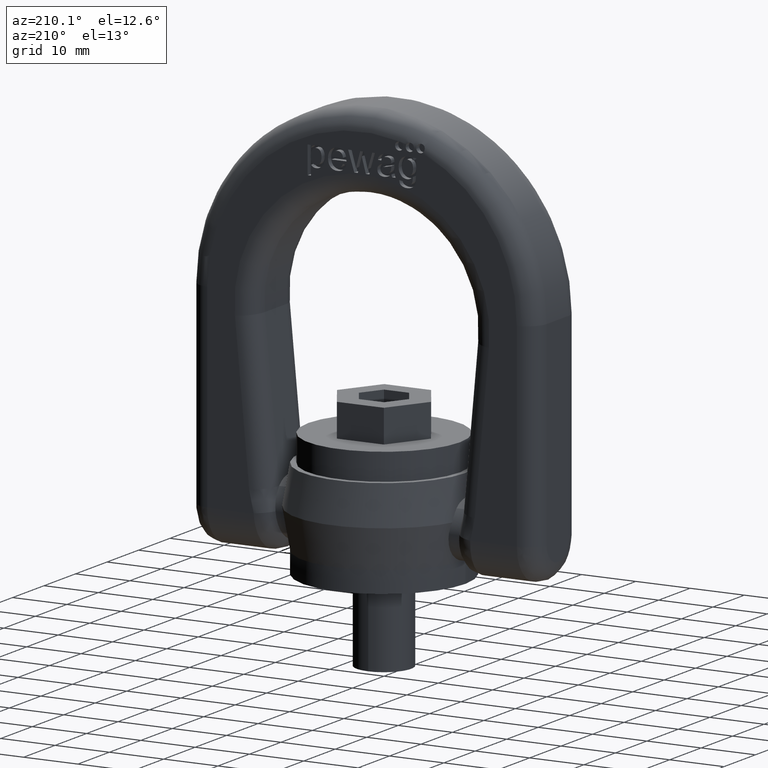
[diagram: clean part render]
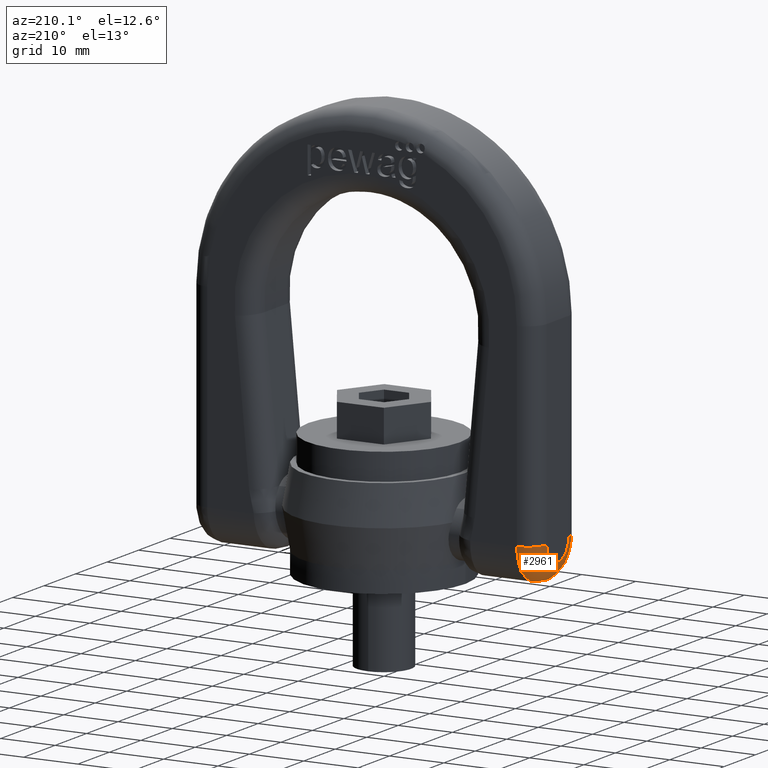
[diagram: same view with one face highlighted and labeled with its STEP entity id]
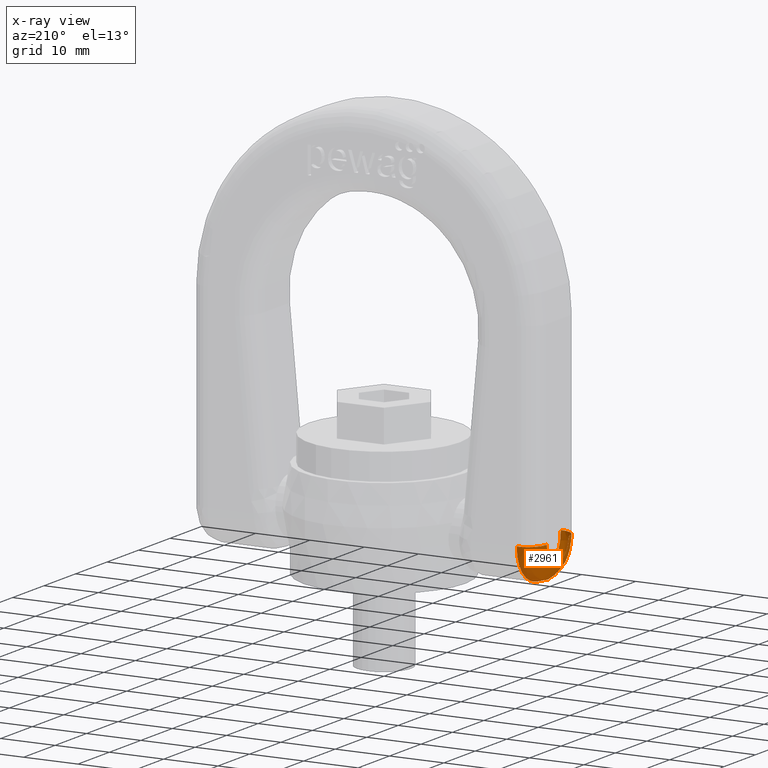
[diagram: x-ray of the same camera — body ghosted, the highlighted face saturated]
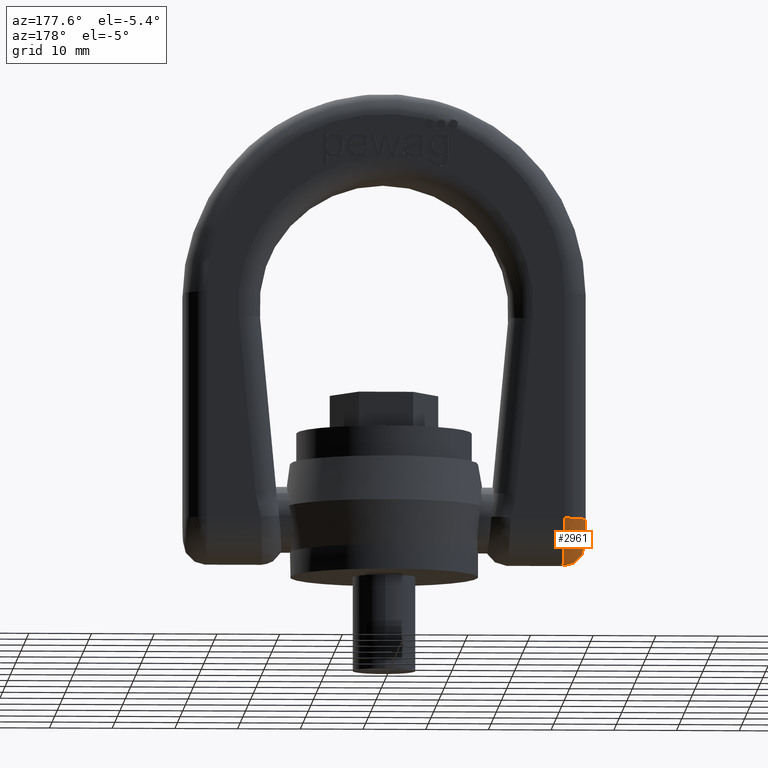
[diagram: same view with one face highlighted and labeled with its STEP entity id]
A machine part, auxiliary view. The second image highlights one B-rep face of the part: STEP entity #2961.
The next image is the same camera in x-ray: the body ghosted, the highlighted face saturated — about 0% of this face is hidden behind the body in this view.
A second angle (auxiliary view) of the same face is appended — the face is thin or edge-on in the first view.
In plain terms, the highlighted face is a freeform B-spline surface patch.
Its self-contained STEP definition (entity closure, byte-faithful):
#213=(
BOUNDED_SURFACE()
B_SPLINE_SURFACE(3,3,((#9511,#9512,#9513,#9514),(#9515,#9516,#9517,#9518),
(#9519,#9520,#9521,#9522),(#9523,#9524,#9525,#9526)),.UNSPECIFIED.,.F.,
 .F.,.F.)
B_SPLINE_SURFACE_WITH_KNOTS((4,4),(4,4),(0.,1.),(0.,1.),.UNSPECIFIED.)
GEOMETRIC_REPRESENTATION_ITEM()
RATIONAL_B_SPLINE_SURFACE(((1.,0.333333333333333,0.333333333333333,1.),
(0.804737854124365,0.268245951374788,0.268245951374788,0.804737854124365),
(0.804737854124365,0.268245951374788,0.268245951374788,0.804737854124365),
(1.,0.333333333333333,0.333333333333333,1.)))
REPRESENTATION_ITEM('')
SURFACE()
);
#2607=FACE_OUTER_BOUND('',#3317,.T.);
#2961=ADVANCED_FACE('',(#2607),#213,.T.);
#3317=EDGE_LOOP('',(#4457,#4458,#4459,#4460));
#4457=ORIENTED_EDGE('',*,*,#5537,.F.);
#4458=ORIENTED_EDGE('',*,*,#5002,.F.);
#4459=ORIENTED_EDGE('',*,*,#5538,.F.);
#4460=ORIENTED_EDGE('',*,*,#5085,.F.);
#4586=VERTEX_POINT('',#6734);
#4588=VERTEX_POINT('',#6747);
#4669=VERTEX_POINT('',#7073);
#4670=VERTEX_POINT('',#7075);
#5002=EDGE_CURVE('',#4588,#4586,#5566,.T.);
#5085=EDGE_CURVE('',#4669,#4670,#5575,.T.);
#5537=EDGE_CURVE('',#4586,#4669,#5595,.T.);
#5538=EDGE_CURVE('',#4670,#4588,#5596,.T.);
#5566=CIRCLE('',#5649,6.99999999999996);
#5575=CIRCLE('',#5660,3.49999999999996);
#5595=CIRCLE('',#5792,3.5);
#5596=CIRCLE('',#5793,3.5);
#5649=AXIS2_PLACEMENT_3D('',#6748,#5932,#5933);
#5660=AXIS2_PLACEMENT_3D('',#7074,#5992,#5993);
#5792=AXIS2_PLACEMENT_3D('',#9509,#6550,#6551);
#5793=AXIS2_PLACEMENT_3D('',#9510,#6552,#6553);
#5932=DIRECTION('',(1.,0.,-4.83546613512699E-16));
#5933=DIRECTION('',(-4.95635278850519E-16,0.,-1.));
#5992=DIRECTION('',(-1.,0.,4.83546613512699E-16));
#5993=DIRECTION('',(0.,0.,-1.));
#6550=DIRECTION('',(9.91270557701031E-16,-4.95635278850517E-16,1.));
#6551=DIRECTION('',(1.,0.,-9.91270557701033E-16));
#6552=DIRECTION('',(4.95635278850516E-16,4.95635278850518E-16,1.));
#6553=DIRECTION('',(0.,-1.,4.95635278850516E-16));
#6734=CARTESIAN_POINT('',(-28.5,7.00000000000007,8.95000000000003));
#6747=CARTESIAN_POINT('',(-28.5,-7.,8.95000000000003));
#6748=CARTESIAN_POINT('',(-28.5,3.32172440595246E-14,8.95000000000003));
#7073=CARTESIAN_POINT('',(-32.,3.5,8.95000000000003));
#7074=CARTESIAN_POINT('',(-32.,3.32172440595246E-14,8.95000000000003));
#7075=CARTESIAN_POINT('',(-32.,-3.5,8.95000000000003));
#9509=CARTESIAN_POINT('',(-28.5,3.49999999999999,8.95000000000003));
#9510=CARTESIAN_POINT('',(-28.5,-3.49999999999993,8.95000000000003));
#9511=CARTESIAN_POINT('',(-28.5,-6.99999999999993,8.95000000000003));
#9512=CARTESIAN_POINT('',(-28.5,-6.99999999999994,-5.04999999999991));
#9513=CARTESIAN_POINT('',(-28.5,7.00000000000001,-5.04999999999992));
#9514=CARTESIAN_POINT('',(-28.5,6.99999999999999,8.95000000000003));
#9515=CARTESIAN_POINT('',(-30.5502525316942,-6.99999999999993,8.95000000000003));
#9516=CARTESIAN_POINT('',(-30.5502525316942,-6.99999999999994,-5.04999999999991));
#9517=CARTESIAN_POINT('',(-30.5502525316942,7.,-5.04999999999991));
#9518=CARTESIAN_POINT('',(-30.5502525316942,6.99999999999999,8.95000000000003));
#9519=CARTESIAN_POINT('',(-32.,-5.55025253169409,8.95000000000003));
#9520=CARTESIAN_POINT('',(-32.,-5.55025253169411,-2.15050506338824));
#9521=CARTESIAN_POINT('',(-32.,5.55025253169417,-2.15050506338824));
#9522=CARTESIAN_POINT('',(-32.,5.55025253169416,8.95000000000003));
#9523=CARTESIAN_POINT('',(-32.,-3.49999999999993,8.95000000000003));
#9524=CARTESIAN_POINT('',(-32.,-3.49999999999994,1.9500000000001));
#9525=CARTESIAN_POINT('',(-32.,3.5,1.9500000000001));
#9526=CARTESIAN_POINT('',(-32.,3.49999999999999,8.95000000000003));